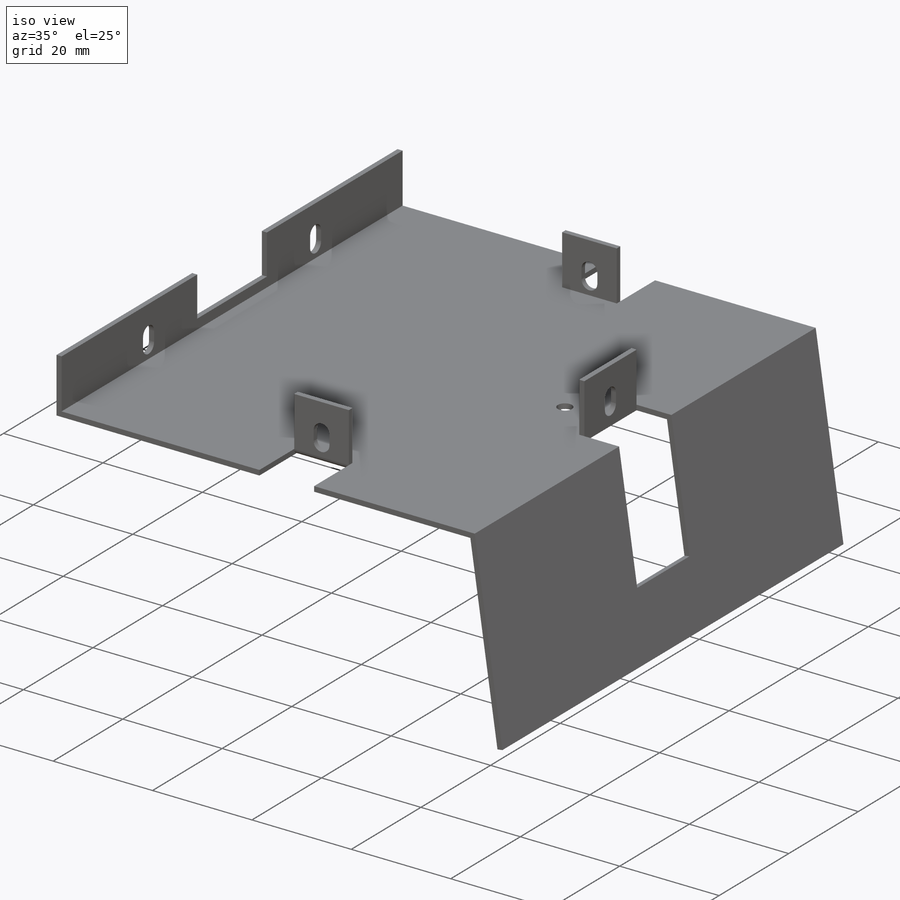
[diagram: iso view]
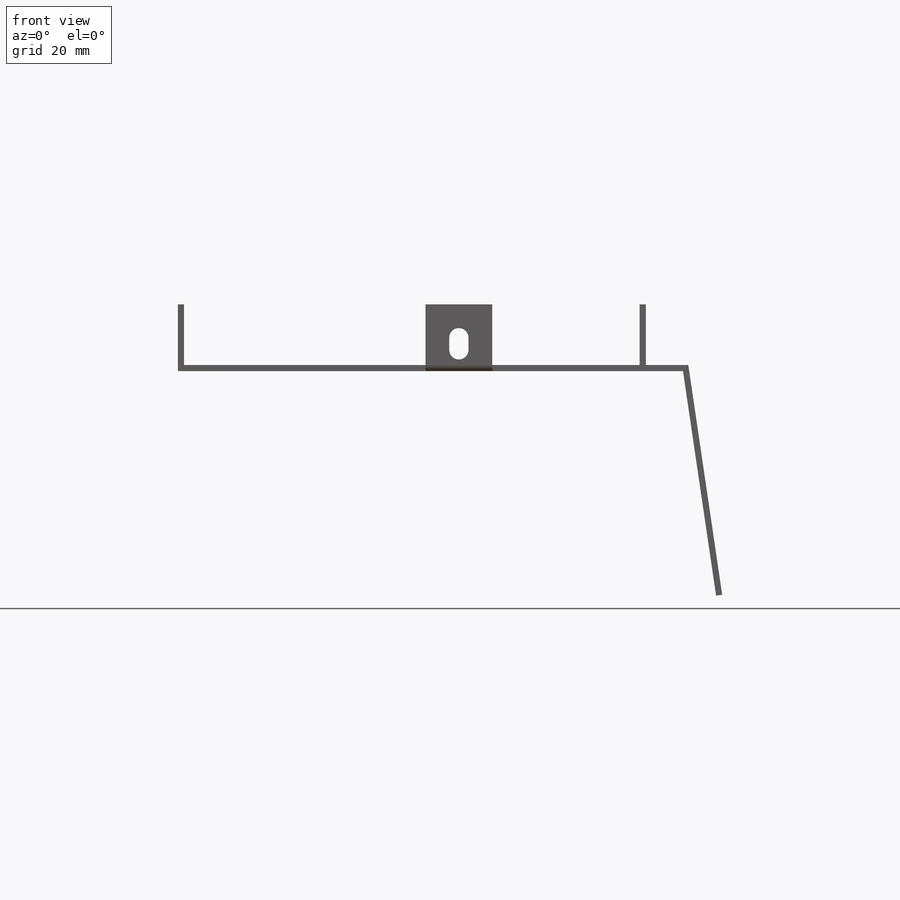
[diagram: front view]
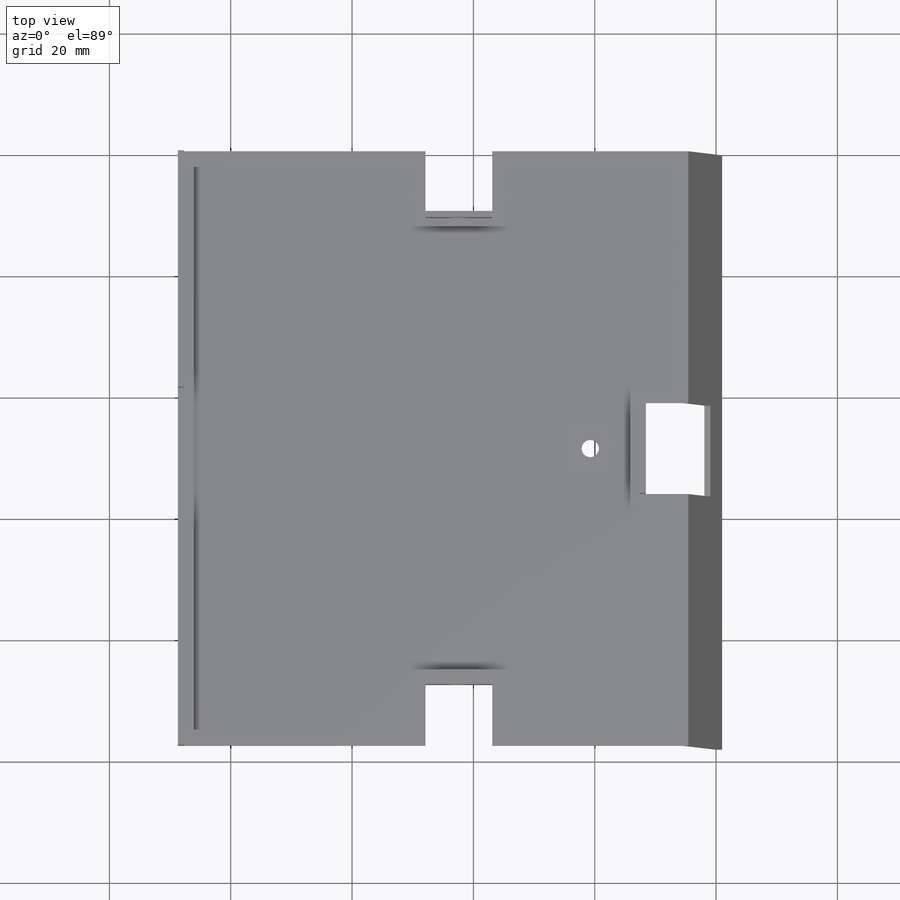
[diagram: top view]
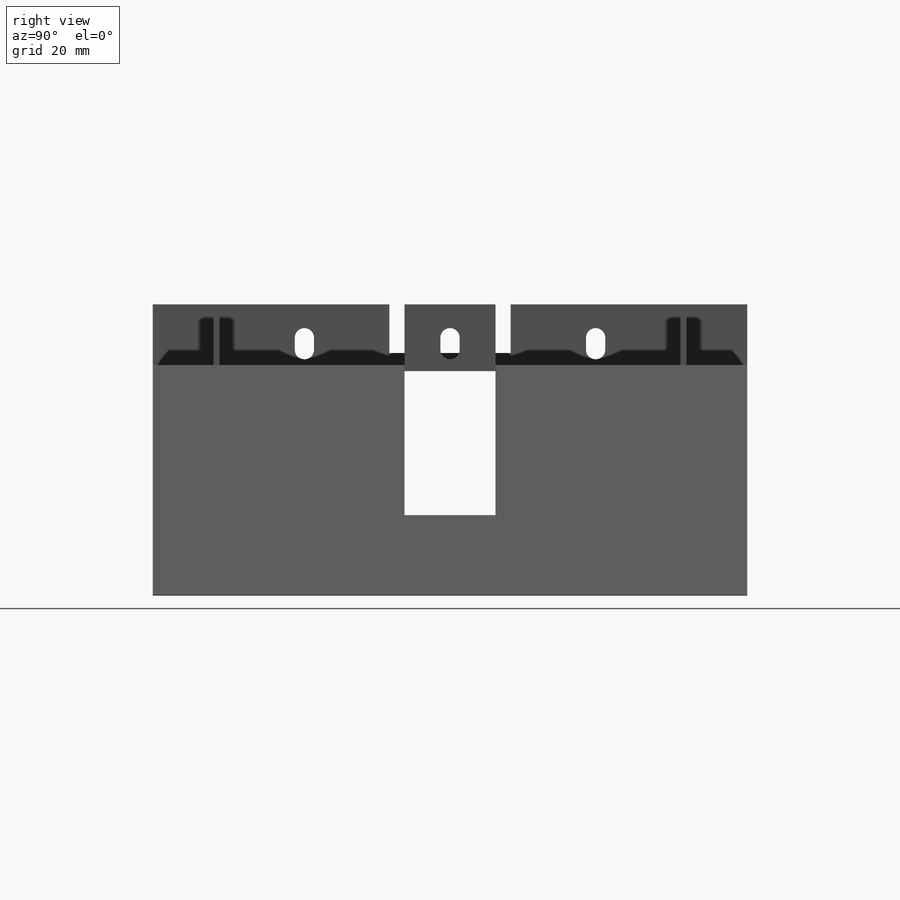
[diagram: right view]
SOLIDWORKS PART (.sldprt)
format: sldprt  version: not decoded by parser v0  size: 376,320 bytes
history: native  units: mm
features: sketch x9, cut_extrude x6, extrude x3, fillet x2, material x1, plane x1, mirror x1 (+13 scaffold rows collapsed)
feature tree (36):
  scaffold x13  (default folders/planes/origin — collapsed)
  material  "Material <not specified>"
  sketch  "Sketch1"  dims[c1.D1=82.25mm c1.D2=~10.563386mm c1.D3=~10.563386mm c2.D3=60.0deg c2.D2=37.0mm c3.D3=7.0mm c4.D3=120.0deg c5.D3=33.91mm c6.D3=~97.187669deg c7.D3=1.016mm c8.D3=8.39deg c8.D5=1.016mm c8.D6=10.0mm c8.D4=1.016mm]
  extrude  "Boss-Extrude1"  Depth=98mm
  sketch  "Sketch2"  dims[D1=10.0mm D2=11.0mm D3=37.82mm]
  cut_extrude  "Cut-Extrude1"  [1 undecoded]
  sketch  "Sketch4"  dims[D2=3.18mm D1=10.0mm D3=6.5mm D4=1.0mm D5=~1.911676mm D6=1.0mm]
  extrude  "Boss-Extrude2"  Depth=1.016mm
  fillet  "Fillet2"  Radius=1mm
  plane  "Plane1"
  sketch  "Sketch6"  dims[D1=2.8448mm]
  cut_extrude  "Cut-Extrude2"  [1 undecoded]
  mirror  "Mirror4"
  fillet  "Fillet4"  Radius=1mm
  sketch  "Sketch8"  dims[c1.D1=3.18mm c1.D2=2.0mm c1.D3=25.0mm c2.D2=2.0mm c2.D4=5.5mm c2.D5=20.0mm c2.D6=3.0mm]
  cut_extrude  "Cut-Extrude4"  [1 undecoded]
  sketch  "Sketch9"  dims[D1=15.0mm D2=3.0mm D3=22.0mm]
  cut_extrude  "Cut-Extrude5"  [1 undecoded]
  sketch  "Sketch10"  dims[D1=7.0mm D2=15.0mm D3=3.0mm]
  cut_extrude  "Cut-Extrude6"  [1 undecoded]
  sketch  "Sketch11"  dims[D1=10.0mm]
  extrude  "Boss-Extrude4"  Depth=1.016mm
  sketch  "Sketch12"  dims[D1=3.18mm D2=2.0mm D3=5.5mm]
  cut_extrude  "Cut-Extrude7"  [1 undecoded]
decode coverage: 14 of 21 modeling features carry decoded parameters
note: ~ marks probable driven/reference dimensions
note: 6 parameter values undecoded
summary: no parameter record found for 6 features
note: suppression state not decoded; provenance and decode notes live in map.json
